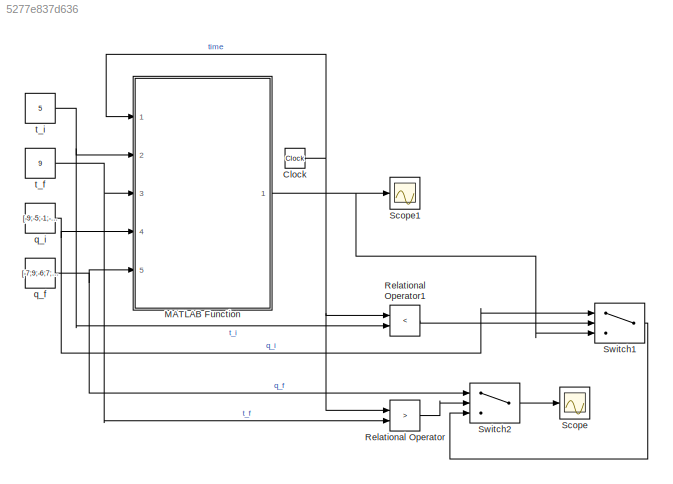
MODEL slx_5277e837d636
KIND model
CONFIG AbsTol = auto
CONFIG EnableMultiTasking = off
CONFIG FixedStep = auto
CONFIG MaxStep = auto
CONFIG MinStep = auto
CONFIG RelTol = 1e-3
CONFIG SampleTimeConstraint = Unconstrained
CONFIG SolverName = VariableStepAuto
CONFIG StartTime = 0.0
CONFIG StopTime = 12
BLOCK [Clock] Clock
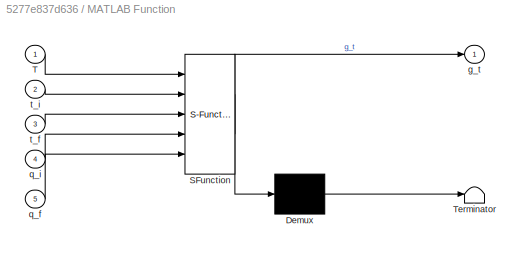
BLOCK [SubSystem] MATLAB Function
  ErrorFcn = Stateflow.Translate.translate
  PermitHierarchicalResolution = ExplicitOnly
  Ports = [5, 1]
  RequestExecContextInheritance = off
  SFBlockType = MATLAB Function
  TreatAsAtomicUnit = on
BLOCK [Demux] MATLAB Function/ Demux 
  Outputs = 1
  Ports = [1, 1]
BLOCK [S-Function] MATLAB Function/ SFunction 
  EnableBusSupport = on
  FunctionName = sf_sfun
  PortCounts = [5 2]
  Ports = [5, 2]
  SFcnIsStateOwnerBlock = off
  SFunctionDeploymentMode = off
  Tag = Stateflow S-Function 2
BLOCK [Terminator] MATLAB Function/ Terminator 
BLOCK [Inport] MATLAB Function/T
BLOCK [Outport] MATLAB Function/g_t
BLOCK [Inport] MATLAB Function/q_f
  Port = 5
BLOCK [Inport] MATLAB Function/q_i
  Port = 4
BLOCK [Inport] MATLAB Function/t_f
  Port = 3
BLOCK [Inport] MATLAB Function/t_i
  Port = 2
BLOCK [RelationalOperator] Relational Operator
  InputSameDT = off
  Operator = >
  OutDataTypeStr = boolean
  Ports = [2, 1]
  RndMeth = Simplest
BLOCK [RelationalOperator] Relational Operator1
  InputSameDT = off
  Operator = <
  OutDataTypeStr = boolean
  Ports = [2, 1]
  RndMeth = Simplest
BLOCK [Scope] Scope
  Floating = off
  NumInputPorts = 1
  Ports = [1]
  ScopeSpecificationString = Simulink.scopes.TimeScopeBlockCfg('CurrentConfiguration', extmgr.ConfigurationSet(extmgr.Configuration('Core','General UI',true),extmgr.Configuration('Core','Source UI',true),extmgr.Configuration('Sources','WiredSimulink',true),extmgr.Configuration('Visuals','Time Domain',true,'SerializedDisplays',{struct('MinYLimReal','-11.25','MaxYLimReal','11.25','YLabelReal','','MinYLimMag','0.00000','MaxYLimM...<+1430ch>
BLOCK [Scope] Scope1
  Floating = off
  NumInputPorts = 1
  Ports = [1]
  ScopeSpecificationString = Simulink.scopes.TimeScopeBlockCfg('CurrentConfiguration', extmgr.ConfigurationSet(extmgr.Configuration('Core','General UI',true),extmgr.Configuration('Core','Source UI',true),extmgr.Configuration('Sources','WiredSimulink',true,'DataLoggingVariableName','ScopeData2'),extmgr.Configuration('Visuals','Time Domain',true,'SerializedDisplays',{struct('MinYLimReal','-151.55859','MaxYLimReal','144.96484','...<+1682ch>
BLOCK [Switch] Switch1
  Criteria = u2 > Threshold
  InputSameDT = off
  SaturateOnIntegerOverflow = off
BLOCK [Switch] Switch2
  Criteria = u2 > Threshold
  InputSameDT = off
  SaturateOnIntegerOverflow = off
BLOCK [Constant] q_f
  SampleTime = 0
  Value = [-7;9;-6;7;7;-5;7;-8]
BLOCK [Constant] q_i
  Value = [-9;-5;-1;-1;1;6;6;7]
BLOCK [Constant] t_f
  SampleTime = 1
  Value = 9
BLOCK [Constant] t_i
  SampleTime = 1
  Value = 5
NET Clock:1 -> MATLAB Function:1, Relational Operator1:1, Relational Operator:1
NET MATLAB Function:1 -> Scope1:1, Switch1:3
LINE Relational Operator1:1 -> Switch1:2
LINE Relational Operator:1 -> Switch2:2
LINE Switch1:1 -> Switch2:3
LINE Switch2:1 -> Scope:1
NET q_f:1 -> MATLAB Function:5, Switch2:1
NET q_i:1 -> MATLAB Function:4, Switch1:1
NET t_f:1 -> MATLAB Function:3, Relational Operator:2
NET t_i:1 -> MATLAB Function:2, Relational Operator1:2
note: NET lines group one-source signal fan-out (src -> all destinations, sorted); 1:1 wires keep LINE
CHART MATLAB Function states=1 transitions=1
  STATE_LABEL 'eML_blk_kernel()'
  STATE_LABEL "SCRIPT:\nfunction g_t = fcn(T,t_i,t_f,q_i,q_f)\nc = zeros(numel(q_i),4);\n%ax = axes;\n%hold on ;\nt1 = 0:0.01:t_i-0.01;\nt2 = t_i:0.01:t_f;\nt3 = t_f-0.01:0.01:t_f+t_i;\nt = [t1 t2 t3]';\nz = zeros(numel(t),numel(q_i));\nfor i = 1:numel(q_i)\n    RHS = [q_i(i) ; q_f(i) ; 0 ; 0 ];\n    A = [1 t_i (t_i^2) (t_i^3) ; 1 t_f (t_f^2) (t_f^3) ; 0 1 (2*t_i) (3*(t_i^2)) ;  0 1 (2*t_f) (3*(t_f^2))] ;\n    ac0 = A ;\n    ...<+671ch>"
CHART  states=0 transitions=0
